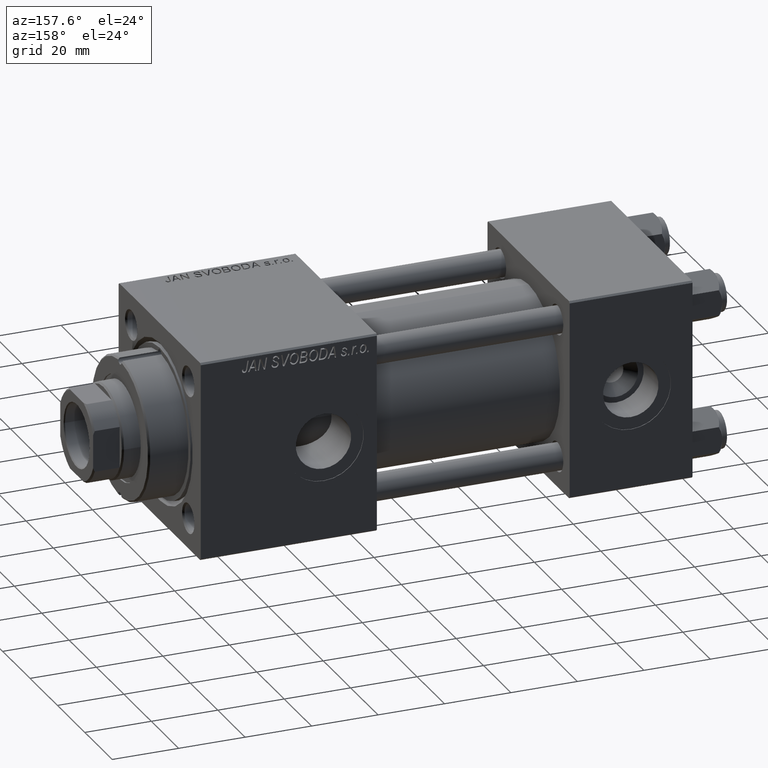
[diagram: clean part render]
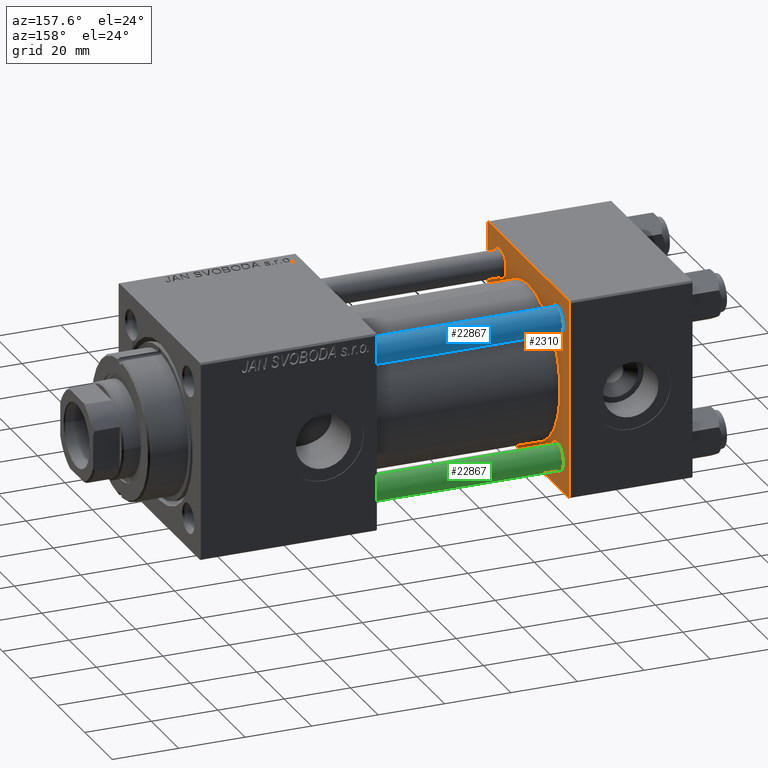
[diagram: same view with three faces highlighted in distinct colors, each labeled with its STEP entity id]
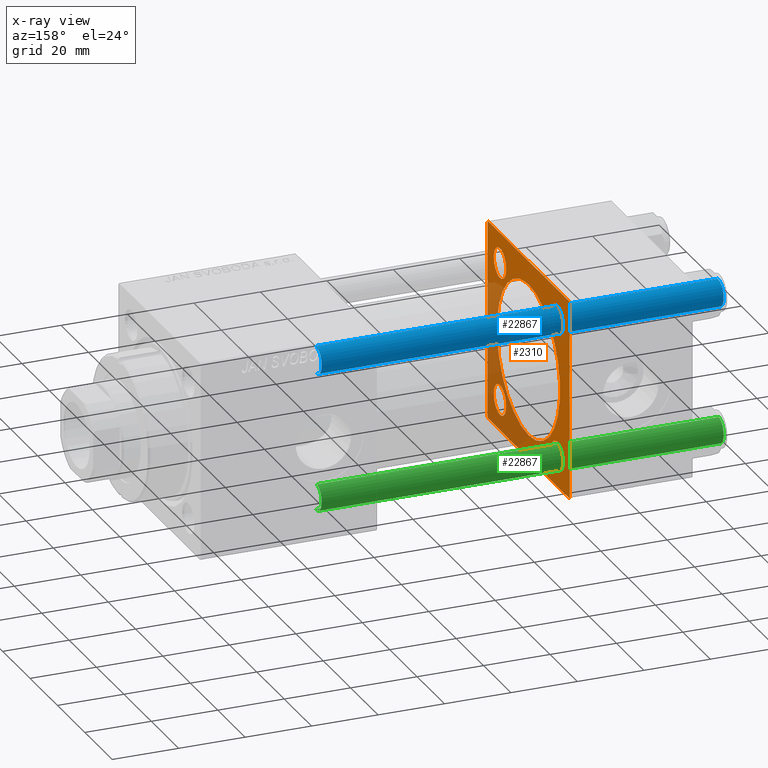
[diagram: x-ray of the same camera — body ghosted, the three highlighted faces saturated]
A machine part, auxiliary view with three faces highlighted in distinct colors.
The next image is the same camera in x-ray (body ghosted, the three faces saturated) — at least one of them is partly hidden behind the body in this view.
Their STEP definitions:

[orange] entity #2310 — the highlighted planar face has unit normal (-1, 0, 0).
#278 = EDGE_CURVE ( 'NONE', #43731, #31658, #17133, .T. ) ;
#426 = ORIENTED_EDGE ( 'NONE', *, *, #22071, .T. ) ;
#479 = CARTESIAN_POINT ( 'NONE',  ( 37.00000000000000000, -2.602085213965210642E-15, 23.00000000000000000 ) ) ;
#923 = DIRECTION ( 'NONE',  ( 0.000000000000000000, -0.7071067811865474617, 0.7071067811865474617 ) ) ;
#1146 = LINE ( 'NONE', #12625, #36239 ) ;
#1425 = EDGE_CURVE ( 'NONE', #29857, #11645, #13876, .T. ) ;
#1593 = VECTOR ( 'NONE', #49605, 1000.000000000000000 ) ;
#1810 = VECTOR ( 'NONE', #9902, 1000.000000000000114 ) ;
#2143 = VERTEX_POINT ( 'NONE', #33283 ) ;
#2199 = DIRECTION ( 'NONE',  ( 0.000000000000000000, 0.000000000000000000, 1.000000000000000000 ) ) ;
#2310 = ADVANCED_FACE ( 'NONE', ( #10412, #37976, #49471, #26764, #42315, #26267 ), #10908, .F. ) ;
#2783 = DIRECTION ( 'NONE',  ( 1.000000000000000000, -0.000000000000000000, 0.000000000000000000 ) ) ;
#3592 = VECTOR ( 'NONE', #6454, 1000.000000000000000 ) ;
#4280 = EDGE_CURVE ( 'NONE', #28829, #5187, #10614, .T. ) ;
#4426 = CARTESIAN_POINT ( 'NONE',  ( 37.00000000000000000, -29.49999999999998579, 29.99999999999999289 ) ) ;
#5187 = VERTEX_POINT ( 'NONE', #34584 ) ;
#5458 = VECTOR ( 'NONE', #6393, 1000.000000000000114 ) ;
#5662 = AXIS2_PLACEMENT_3D ( 'NONE', #16971, #32538, #19795 ) ;
#5765 = DIRECTION ( 'NONE',  ( -1.000000000000000000, 0.000000000000000000, -0.000000000000000000 ) ) ;
#5874 = ORIENTED_EDGE ( 'NONE', *, *, #14502, .F. ) ;
#6393 = DIRECTION ( 'NONE',  ( 0.000000000000000000, 0.7071067811865474617, -0.7071067811865474617 ) ) ;
#6454 = DIRECTION ( 'NONE',  ( 0.000000000000000000, 0.000000000000000000, -1.000000000000000000 ) ) ;
#8015 = VERTEX_POINT ( 'NONE', #9270 ) ;
#9270 = CARTESIAN_POINT ( 'NONE',  ( 37.00000000000000000, -20.84999999999999076, -25.34999999999999432 ) ) ;
#9433 = AXIS2_PLACEMENT_3D ( 'NONE', #49626, #22828, #38384 ) ;
#9576 = VECTOR ( 'NONE', #923, 1000.000000000000114 ) ;
#9607 = EDGE_CURVE ( 'NONE', #5187, #28829, #39334, .T. ) ;
#9902 = DIRECTION ( 'NONE',  ( -0.000000000000000000, -0.7071067811865474617, -0.7071067811865474617 ) ) ;
#10067 = DIRECTION ( 'NONE',  ( 0.000000000000000000, 0.000000000000000000, 1.000000000000000000 ) ) ;
#10367 = CARTESIAN_POINT ( 'NONE',  ( 37.00000000000000000, 29.99999999999999289, 29.50000000000000000 ) ) ;
#10412 = FACE_BOUND ( 'NONE', #44177, .T. ) ;
#10614 = CIRCLE ( 'NONE', #40767, 4.499999999999990230 ) ;
#10908 = PLANE ( 'NONE',  #29302 ) ;
#11087 = VERTEX_POINT ( 'NONE', #4426 ) ;
#11195 = CARTESIAN_POINT ( 'NONE',  ( 37.00000000000000000, 20.84999999999999787, 25.34999999999999076 ) ) ;
#11423 = EDGE_LOOP ( 'NONE', ( #19053, #15747 ) ) ;
#11645 = VERTEX_POINT ( 'NONE', #479 ) ;
#11993 = CARTESIAN_POINT ( 'NONE',  ( 37.00000000000000000, 20.84999999999999787, 20.85000000000000142 ) ) ;
#12102 = ORIENTED_EDGE ( 'NONE', *, *, #39591, .T. ) ;
#12112 = VERTEX_POINT ( 'NONE', #41754 ) ;
#12625 = CARTESIAN_POINT ( 'NONE',  ( 37.00000000000000000, 29.99999999999999289, -30.00000000000000000 ) ) ;
#12682 = DIRECTION ( 'NONE',  ( -1.000000000000000000, 0.000000000000000000, -0.000000000000000000 ) ) ;
#12867 = CARTESIAN_POINT ( 'NONE',  ( 37.00000000000000000, 29.99999999999999289, -29.50000000000000000 ) ) ;
#13084 = VERTEX_POINT ( 'NONE', #44262 ) ;
#13876 = CIRCLE ( 'NONE', #48930, 23.00000000000000000 ) ;
#13963 = ORIENTED_EDGE ( 'NONE', *, *, #278, .T. ) ;
#13973 = VERTEX_POINT ( 'NONE', #17857 ) ;
#14205 = VERTEX_POINT ( 'NONE', #10367 ) ;
#14502 = EDGE_CURVE ( 'NONE', #14205, #24275, #41440, .T. ) ;
#14859 = EDGE_LOOP ( 'NONE', ( #22120, #48143, #5874, #28963, #12102, #21629, #43075, #20043 ) ) ;
#15010 = AXIS2_PLACEMENT_3D ( 'NONE', #37742, #2783, #18368 ) ;
#15518 = LINE ( 'NONE', #19880, #33134 ) ;
#15675 = AXIS2_PLACEMENT_3D ( 'NONE', #33311, #45539, #10067 ) ;
#15747 = ORIENTED_EDGE ( 'NONE', *, *, #4280, .T. ) ;
#16238 = AXIS2_PLACEMENT_3D ( 'NONE', #11993, #27847, #30918 ) ;
#16298 = EDGE_CURVE ( 'NONE', #13084, #2143, #1146, .T. ) ;
#16302 = CARTESIAN_POINT ( 'NONE',  ( 37.00000000000000000, -2.602085213965210642E-15, 0.000000000000000000 ) ) ;
#16624 = AXIS2_PLACEMENT_3D ( 'NONE', #39018, #19394, #26567 ) ;
#16971 = CARTESIAN_POINT ( 'NONE',  ( 37.00000000000000000, -20.84999999999999076, 20.85000000000000497 ) ) ;
#17133 = CIRCLE ( 'NONE', #21220, 4.499999999999990230 ) ;
#17857 = CARTESIAN_POINT ( 'NONE',  ( 37.00000000000000000, 29.49999999999999289, 30.00000000000000000 ) ) ;
#18160 = CARTESIAN_POINT ( 'NONE',  ( 37.00000000000000000, -29.50000000000001066, -30.00000000000000711 ) ) ;
#18368 = DIRECTION ( 'NONE',  ( 0.000000000000000000, 0.000000000000000000, 1.000000000000000000 ) ) ;
#18371 = CARTESIAN_POINT ( 'NONE',  ( 37.00000000000000000, 2.146024240737012665E-16, -23.00000000000000000 ) ) ;
#19053 = ORIENTED_EDGE ( 'NONE', *, *, #9607, .T. ) ;
#19107 = DIRECTION ( 'NONE',  ( -1.000000000000000000, 0.000000000000000000, -0.000000000000000000 ) ) ;
#19165 = LINE ( 'NONE', #18160, #5458 ) ;
#19232 = VERTEX_POINT ( 'NONE', #31967 ) ;
#19394 = DIRECTION ( 'NONE',  ( -1.000000000000000000, 0.000000000000000000, -0.000000000000000000 ) ) ;
#19795 = DIRECTION ( 'NONE',  ( 0.000000000000000000, 0.000000000000000000, 1.000000000000000000 ) ) ;
#19880 = CARTESIAN_POINT ( 'NONE',  ( 37.00000000000000000, -30.00000000000000000, 29.99999999999999289 ) ) ;
#20043 = ORIENTED_EDGE ( 'NONE', *, *, #32168, .T. ) ;
#20303 = CARTESIAN_POINT ( 'NONE',  ( 37.00000000000000000, -20.84999999999999076, 16.35000000000001208 ) ) ;
#20636 = EDGE_CURVE ( 'NONE', #19232, #12112, #15518, .T. ) ;
#21178 = CIRCLE ( 'NONE', #5662, 4.499999999999990230 ) ;
#21220 = AXIS2_PLACEMENT_3D ( 'NONE', #32101, #12682, #36857 ) ;
#21554 = ORIENTED_EDGE ( 'NONE', *, *, #25959, .T. ) ;
#21569 = CIRCLE ( 'NONE', #15010, 23.00000000000000000 ) ;
#21629 = ORIENTED_EDGE ( 'NONE', *, *, #50100, .T. ) ;
#22071 = EDGE_CURVE ( 'NONE', #33556, #8015, #34552, .T. ) ;
#22120 = ORIENTED_EDGE ( 'NONE', *, *, #16298, .F. ) ;
#22394 = EDGE_CURVE ( 'NONE', #11645, #29857, #21569, .T. ) ;
#22486 = CARTESIAN_POINT ( 'NONE',  ( 37.00000000000000000, 20.84999999999999787, 16.35000000000001208 ) ) ;
#22828 = DIRECTION ( 'NONE',  ( -1.000000000000000000, 0.000000000000000000, -0.000000000000000000 ) ) ;
#23822 = AXIS2_PLACEMENT_3D ( 'NONE', #37407, #5765, #2199 ) ;
#24275 = VERTEX_POINT ( 'NONE', #31191 ) ;
#24495 = CARTESIAN_POINT ( 'NONE',  ( 37.00000000000000000, -20.84999999999999076, -16.35000000000001208 ) ) ;
#25226 = ORIENTED_EDGE ( 'NONE', *, *, #22394, .F. ) ;
#25578 = EDGE_LOOP ( 'NONE', ( #37710, #42066 ) ) ;
#25959 = EDGE_CURVE ( 'NONE', #8015, #33556, #31471, .T. ) ;
#26016 = DIRECTION ( 'NONE',  ( -0.000000000000000000, 0.000000000000000000, 1.000000000000000000 ) ) ;
#26267 = FACE_OUTER_BOUND ( 'NONE', #14859, .T. ) ;
#26567 = DIRECTION ( 'NONE',  ( 0.000000000000000000, 0.000000000000000000, 1.000000000000000000 ) ) ;
#26764 = FACE_BOUND ( 'NONE', #25578, .T. ) ;
#27148 = LINE ( 'NONE', #41709, #1593 ) ;
#27558 = DIRECTION ( 'NONE',  ( 1.000000000000000000, -0.000000000000000000, 0.000000000000000000 ) ) ;
#27795 = DIRECTION ( 'NONE',  ( 0.000000000000000000, 0.000000000000000000, -1.000000000000000000 ) ) ;
#27847 = DIRECTION ( 'NONE',  ( -1.000000000000000000, 0.000000000000000000, -0.000000000000000000 ) ) ;
#28213 = LINE ( 'NONE', #12867, #43895 ) ;
#28496 = DIRECTION ( 'NONE',  ( 0.000000000000000000, 0.000000000000000000, 1.000000000000000000 ) ) ;
#28829 = VERTEX_POINT ( 'NONE', #33488 ) ;
#28963 = ORIENTED_EDGE ( 'NONE', *, *, #33403, .T. ) ;
#29013 = CARTESIAN_POINT ( 'NONE',  ( 37.00000000000000000, 20.84999999999999787, -20.85000000000000142 ) ) ;
#29302 = AXIS2_PLACEMENT_3D ( 'NONE', #49717, #19107, #26016 ) ;
#29857 = VERTEX_POINT ( 'NONE', #18371 ) ;
#30918 = DIRECTION ( 'NONE',  ( 0.000000000000000000, 0.000000000000000000, 1.000000000000000000 ) ) ;
#31191 = CARTESIAN_POINT ( 'NONE',  ( 37.00000000000000000, 29.99999999999999289, -29.50000000000000000 ) ) ;
#31471 = CIRCLE ( 'NONE', #9433, 4.499999999999990230 ) ;
#31658 = VERTEX_POINT ( 'NONE', #43743 ) ;
#31790 = DIRECTION ( 'NONE',  ( 0.000000000000000000, -1.000000000000000000, -1.156482317317871725E-16 ) ) ;
#31893 = DIRECTION ( 'NONE',  ( 0.000000000000000000, 0.000000000000000000, 1.000000000000000000 ) ) ;
#31967 = CARTESIAN_POINT ( 'NONE',  ( 37.00000000000000000, -30.00000000000000000, 29.49999999999999289 ) ) ;
#32101 = CARTESIAN_POINT ( 'NONE',  ( 37.00000000000000000, -20.84999999999999076, 20.85000000000000497 ) ) ;
#32168 = EDGE_CURVE ( 'NONE', #12112, #2143, #19165, .T. ) ;
#32538 = DIRECTION ( 'NONE',  ( -1.000000000000000000, 0.000000000000000000, -0.000000000000000000 ) ) ;
#33082 = DIRECTION ( 'NONE',  ( -1.000000000000000000, 0.000000000000000000, -0.000000000000000000 ) ) ;
#33134 = VECTOR ( 'NONE', #27795, 1000.000000000000000 ) ;
#33152 = LINE ( 'NONE', #41552, #1810 ) ;
#33283 = CARTESIAN_POINT ( 'NONE',  ( 37.00000000000000000, -29.50000000000000000, -30.00000000000000711 ) ) ;
#33311 = CARTESIAN_POINT ( 'NONE',  ( 37.00000000000000000, 20.84999999999999787, -20.85000000000000142 ) ) ;
#33403 = EDGE_CURVE ( 'NONE', #14205, #13973, #39469, .T. ) ;
#33488 = CARTESIAN_POINT ( 'NONE',  ( 37.00000000000000000, 20.84999999999999787, -16.35000000000001208 ) ) ;
#33556 = VERTEX_POINT ( 'NONE', #24495 ) ;
#34552 = CIRCLE ( 'NONE', #16624, 4.499999999999990230 ) ;
#34584 = CARTESIAN_POINT ( 'NONE',  ( 37.00000000000000000, 20.84999999999999787, -25.34999999999999076 ) ) ;
#36239 = VECTOR ( 'NONE', #31790, 1000.000000000000000 ) ;
#36462 = EDGE_LOOP ( 'NONE', ( #13963, #38160 ) ) ;
#36857 = DIRECTION ( 'NONE',  ( 0.000000000000000000, 0.000000000000000000, 1.000000000000000000 ) ) ;
#37006 = EDGE_CURVE ( 'NONE', #13084, #24275, #28213, .T. ) ;
#37407 = CARTESIAN_POINT ( 'NONE',  ( 37.00000000000000000, 20.84999999999999787, 20.85000000000000142 ) ) ;
#37440 = CIRCLE ( 'NONE', #16238, 4.499999999999990230 ) ;
#37710 = ORIENTED_EDGE ( 'NONE', *, *, #38085, .T. ) ;
#37742 = CARTESIAN_POINT ( 'NONE',  ( 37.00000000000000000, -2.602085213965210642E-15, 0.000000000000000000 ) ) ;
#37976 = FACE_BOUND ( 'NONE', #11423, .T. ) ;
#38085 = EDGE_CURVE ( 'NONE', #39267, #47849, #37440, .T. ) ;
#38160 = ORIENTED_EDGE ( 'NONE', *, *, #42947, .T. ) ;
#38384 = DIRECTION ( 'NONE',  ( 0.000000000000000000, 0.000000000000000000, 1.000000000000000000 ) ) ;
#38770 = EDGE_LOOP ( 'NONE', ( #25226, #50301 ) ) ;
#39018 = CARTESIAN_POINT ( 'NONE',  ( 37.00000000000000000, -20.84999999999999076, -20.85000000000000497 ) ) ;
#39267 = VERTEX_POINT ( 'NONE', #22486 ) ;
#39334 = CIRCLE ( 'NONE', #15675, 4.499999999999990230 ) ;
#39469 = LINE ( 'NONE', #47112, #9576 ) ;
#39591 = EDGE_CURVE ( 'NONE', #13973, #11087, #27148, .T. ) ;
#40767 = AXIS2_PLACEMENT_3D ( 'NONE', #29013, #33082, #28496 ) ;
#41440 = LINE ( 'NONE', #45258, #3592 ) ;
#41552 = CARTESIAN_POINT ( 'NONE',  ( 37.00000000000000000, -30.00000000000000000, 29.49999999999999289 ) ) ;
#41709 = CARTESIAN_POINT ( 'NONE',  ( 37.00000000000000000, 29.99999999999999289, 30.00000000000000000 ) ) ;
#41754 = CARTESIAN_POINT ( 'NONE',  ( 37.00000000000000000, -30.00000000000000000, -29.50000000000001776 ) ) ;
#42066 = ORIENTED_EDGE ( 'NONE', *, *, #50367, .T. ) ;
#42315 = FACE_BOUND ( 'NONE', #38770, .T. ) ;
#42947 = EDGE_CURVE ( 'NONE', #31658, #43731, #21178, .T. ) ;
#43075 = ORIENTED_EDGE ( 'NONE', *, *, #20636, .T. ) ;
#43731 = VERTEX_POINT ( 'NONE', #20303 ) ;
#43743 = CARTESIAN_POINT ( 'NONE',  ( 37.00000000000000000, -20.84999999999999076, 25.34999999999999432 ) ) ;
#43895 = VECTOR ( 'NONE', #49352, 999.9999999999998863 ) ;
#44177 = EDGE_LOOP ( 'NONE', ( #21554, #426 ) ) ;
#44262 = CARTESIAN_POINT ( 'NONE',  ( 37.00000000000000000, 29.49999999999997868, -30.00000000000000000 ) ) ;
#45258 = CARTESIAN_POINT ( 'NONE',  ( 37.00000000000000000, 29.99999999999999289, 30.00000000000000000 ) ) ;
#45539 = DIRECTION ( 'NONE',  ( -1.000000000000000000, 0.000000000000000000, -0.000000000000000000 ) ) ;
#47112 = CARTESIAN_POINT ( 'NONE',  ( 37.00000000000000000, 29.49999999999999289, 30.00000000000000000 ) ) ;
#47849 = VERTEX_POINT ( 'NONE', #11195 ) ;
#48143 = ORIENTED_EDGE ( 'NONE', *, *, #37006, .T. ) ;
#48930 = AXIS2_PLACEMENT_3D ( 'NONE', #16302, #27558, #31893 ) ;
#49061 = CIRCLE ( 'NONE', #23822, 4.499999999999990230 ) ;
#49352 = DIRECTION ( 'NONE',  ( -0.000000000000000000, 0.7071067811865574537, 0.7071067811865376918 ) ) ;
#49471 = FACE_BOUND ( 'NONE', #36462, .T. ) ;
#49605 = DIRECTION ( 'NONE',  ( 0.000000000000000000, -1.000000000000000000, -1.156482317317871725E-16 ) ) ;
#49626 = CARTESIAN_POINT ( 'NONE',  ( 37.00000000000000000, -20.84999999999999076, -20.85000000000000497 ) ) ;
#49717 = CARTESIAN_POINT ( 'NONE',  ( 37.00000000000000000, 0.000000000000000000, 0.000000000000000000 ) ) ;
#50100 = EDGE_CURVE ( 'NONE', #11087, #19232, #33152, .T. ) ;
#50301 = ORIENTED_EDGE ( 'NONE', *, *, #1425, .F. ) ;
#50367 = EDGE_CURVE ( 'NONE', #47849, #39267, #49061, .T. ) ;

[blue] entity #22867 — the highlighted cylindrical surface (edge-blend (fillet) strip) has radius 4 mm, axis along (-1, 0, 0).
#1733 = CARTESIAN_POINT ( 'NONE',  ( 0.000000000000000000, 0.000000000000000000, 121.5000000000000426 ) ) ;
#2973 = CYLINDRICAL_SURFACE ( 'NONE', #47622, 4.000000000000000000 ) ;
#3284 = LINE ( 'NONE', #34675, #48078 ) ;
#3717 = CIRCLE ( 'NONE', #45297, 4.000000000000000000 ) ;
#7549 = FACE_OUTER_BOUND ( 'NONE', #42691, .T. ) ;
#9803 = DIRECTION ( 'NONE',  ( 1.000000000000000000, 0.000000000000000000, 0.000000000000000000 ) ) ;
#11381 = CIRCLE ( 'NONE', #40738, 4.000000000000000000 ) ;
#11616 = CARTESIAN_POINT ( 'NONE',  ( 0.000000000000000000, 0.000000000000000000, 122.0000000000000000 ) ) ;
#12462 = DIRECTION ( 'NONE',  ( -0.000000000000000000, -0.000000000000000000, -1.000000000000000000 ) ) ;
#13635 = CARTESIAN_POINT ( 'NONE',  ( 0.000000000000000000, 0.000000000000000000, 0.5000000000000559552 ) ) ;
#14953 = DIRECTION ( 'NONE',  ( -1.000000000000000000, 0.000000000000000000, 0.000000000000000000 ) ) ;
#16543 = DIRECTION ( 'NONE',  ( 0.000000000000000000, 0.000000000000000000, -1.000000000000000000 ) ) ;
#16808 = DIRECTION ( 'NONE',  ( 1.000000000000000000, 0.000000000000000000, 0.000000000000000000 ) ) ;
#20709 = CARTESIAN_POINT ( 'NONE',  ( -4.000000000000000000, 0.000000000000000000, 0.5000000000000559552 ) ) ;
#22236 = EDGE_CURVE ( 'NONE', #40920, #24268, #47433, .T. ) ;
#22867 = ADVANCED_FACE ( 'NONE', ( #7549 ), #2973, .T. ) ;
#23429 = CARTESIAN_POINT ( 'NONE',  ( 4.000000000000000000, 4.898587196589411843E-16, 121.5000000000000426 ) ) ;
#23718 = CARTESIAN_POINT ( 'NONE',  ( -4.000000000000000000, 0.000000000000000000, 122.0000000000000000 ) ) ;
#24268 = VERTEX_POINT ( 'NONE', #20709 ) ;
#24550 = VERTEX_POINT ( 'NONE', #45309 ) ;
#25403 = DIRECTION ( 'NONE',  ( -0.000000000000000000, -0.000000000000000000, 1.000000000000000000 ) ) ;
#26473 = EDGE_CURVE ( 'NONE', #40920, #37519, #3717, .T. ) ;
#27217 = DIRECTION ( 'NONE',  ( -0.000000000000000000, -0.000000000000000000, -1.000000000000000000 ) ) ;
#27448 = ORIENTED_EDGE ( 'NONE', *, *, #39358, .T. ) ;
#29759 = ORIENTED_EDGE ( 'NONE', *, *, #22236, .F. ) ;
#32431 = CARTESIAN_POINT ( 'NONE',  ( -4.000000000000000000, 0.000000000000000000, 121.5000000000000426 ) ) ;
#32955 = ORIENTED_EDGE ( 'NONE', *, *, #40346, .T. ) ;
#34223 = ORIENTED_EDGE ( 'NONE', *, *, #26473, .T. ) ;
#34675 = CARTESIAN_POINT ( 'NONE',  ( 4.000000000000000000, 4.898587196589411843E-16, 122.0000000000000000 ) ) ;
#37519 = VERTEX_POINT ( 'NONE', #23429 ) ;
#38623 = VECTOR ( 'NONE', #12462, 1000.000000000000000 ) ;
#39358 = EDGE_CURVE ( 'NONE', #24550, #24268, #11381, .T. ) ;
#40346 = EDGE_CURVE ( 'NONE', #37519, #24550, #3284, .T. ) ;
#40738 = AXIS2_PLACEMENT_3D ( 'NONE', #13635, #25403, #9803 ) ;
#40920 = VERTEX_POINT ( 'NONE', #32431 ) ;
#42691 = EDGE_LOOP ( 'NONE', ( #34223, #32955, #27448, #29759 ) ) ;
#45297 = AXIS2_PLACEMENT_3D ( 'NONE', #1733, #16543, #16808 ) ;
#45309 = CARTESIAN_POINT ( 'NONE',  ( 4.000000000000000000, 4.898587196589411843E-16, 0.5000000000000559552 ) ) ;
#47148 = DIRECTION ( 'NONE',  ( -0.000000000000000000, -0.000000000000000000, -1.000000000000000000 ) ) ;
#47433 = LINE ( 'NONE', #23718, #38623 ) ;
#47622 = AXIS2_PLACEMENT_3D ( 'NONE', #11616, #27217, #14953 ) ;
#48078 = VECTOR ( 'NONE', #47148, 1000.000000000000000 ) ;

[green] entity #22867 — the highlighted cylindrical surface (edge-blend (fillet) strip) has radius 4 mm, axis along (1, -0, 0).
#1733 = CARTESIAN_POINT ( 'NONE',  ( 0.000000000000000000, 0.000000000000000000, 121.5000000000000426 ) ) ;
#2973 = CYLINDRICAL_SURFACE ( 'NONE', #47622, 4.000000000000000000 ) ;
#3284 = LINE ( 'NONE', #34675, #48078 ) ;
#3717 = CIRCLE ( 'NONE', #45297, 4.000000000000000000 ) ;
#7549 = FACE_OUTER_BOUND ( 'NONE', #42691, .T. ) ;
#9803 = DIRECTION ( 'NONE',  ( 1.000000000000000000, 0.000000000000000000, 0.000000000000000000 ) ) ;
#11381 = CIRCLE ( 'NONE', #40738, 4.000000000000000000 ) ;
#11616 = CARTESIAN_POINT ( 'NONE',  ( 0.000000000000000000, 0.000000000000000000, 122.0000000000000000 ) ) ;
#12462 = DIRECTION ( 'NONE',  ( -0.000000000000000000, -0.000000000000000000, -1.000000000000000000 ) ) ;
#13635 = CARTESIAN_POINT ( 'NONE',  ( 0.000000000000000000, 0.000000000000000000, 0.5000000000000559552 ) ) ;
#14953 = DIRECTION ( 'NONE',  ( -1.000000000000000000, 0.000000000000000000, 0.000000000000000000 ) ) ;
#16543 = DIRECTION ( 'NONE',  ( 0.000000000000000000, 0.000000000000000000, -1.000000000000000000 ) ) ;
#16808 = DIRECTION ( 'NONE',  ( 1.000000000000000000, 0.000000000000000000, 0.000000000000000000 ) ) ;
#20709 = CARTESIAN_POINT ( 'NONE',  ( -4.000000000000000000, 0.000000000000000000, 0.5000000000000559552 ) ) ;
#22236 = EDGE_CURVE ( 'NONE', #40920, #24268, #47433, .T. ) ;
#22867 = ADVANCED_FACE ( 'NONE', ( #7549 ), #2973, .T. ) ;
#23429 = CARTESIAN_POINT ( 'NONE',  ( 4.000000000000000000, 4.898587196589411843E-16, 121.5000000000000426 ) ) ;
#23718 = CARTESIAN_POINT ( 'NONE',  ( -4.000000000000000000, 0.000000000000000000, 122.0000000000000000 ) ) ;
#24268 = VERTEX_POINT ( 'NONE', #20709 ) ;
#24550 = VERTEX_POINT ( 'NONE', #45309 ) ;
#25403 = DIRECTION ( 'NONE',  ( -0.000000000000000000, -0.000000000000000000, 1.000000000000000000 ) ) ;
#26473 = EDGE_CURVE ( 'NONE', #40920, #37519, #3717, .T. ) ;
#27217 = DIRECTION ( 'NONE',  ( -0.000000000000000000, -0.000000000000000000, -1.000000000000000000 ) ) ;
#27448 = ORIENTED_EDGE ( 'NONE', *, *, #39358, .T. ) ;
#29759 = ORIENTED_EDGE ( 'NONE', *, *, #22236, .F. ) ;
#32431 = CARTESIAN_POINT ( 'NONE',  ( -4.000000000000000000, 0.000000000000000000, 121.5000000000000426 ) ) ;
#32955 = ORIENTED_EDGE ( 'NONE', *, *, #40346, .T. ) ;
#34223 = ORIENTED_EDGE ( 'NONE', *, *, #26473, .T. ) ;
#34675 = CARTESIAN_POINT ( 'NONE',  ( 4.000000000000000000, 4.898587196589411843E-16, 122.0000000000000000 ) ) ;
#37519 = VERTEX_POINT ( 'NONE', #23429 ) ;
#38623 = VECTOR ( 'NONE', #12462, 1000.000000000000000 ) ;
#39358 = EDGE_CURVE ( 'NONE', #24550, #24268, #11381, .T. ) ;
#40346 = EDGE_CURVE ( 'NONE', #37519, #24550, #3284, .T. ) ;
#40738 = AXIS2_PLACEMENT_3D ( 'NONE', #13635, #25403, #9803 ) ;
#40920 = VERTEX_POINT ( 'NONE', #32431 ) ;
#42691 = EDGE_LOOP ( 'NONE', ( #34223, #32955, #27448, #29759 ) ) ;
#45297 = AXIS2_PLACEMENT_3D ( 'NONE', #1733, #16543, #16808 ) ;
#45309 = CARTESIAN_POINT ( 'NONE',  ( 4.000000000000000000, 4.898587196589411843E-16, 0.5000000000000559552 ) ) ;
#47148 = DIRECTION ( 'NONE',  ( -0.000000000000000000, -0.000000000000000000, -1.000000000000000000 ) ) ;
#47433 = LINE ( 'NONE', #23718, #38623 ) ;
#47622 = AXIS2_PLACEMENT_3D ( 'NONE', #11616, #27217, #14953 ) ;
#48078 = VECTOR ( 'NONE', #47148, 1000.000000000000000 ) ;